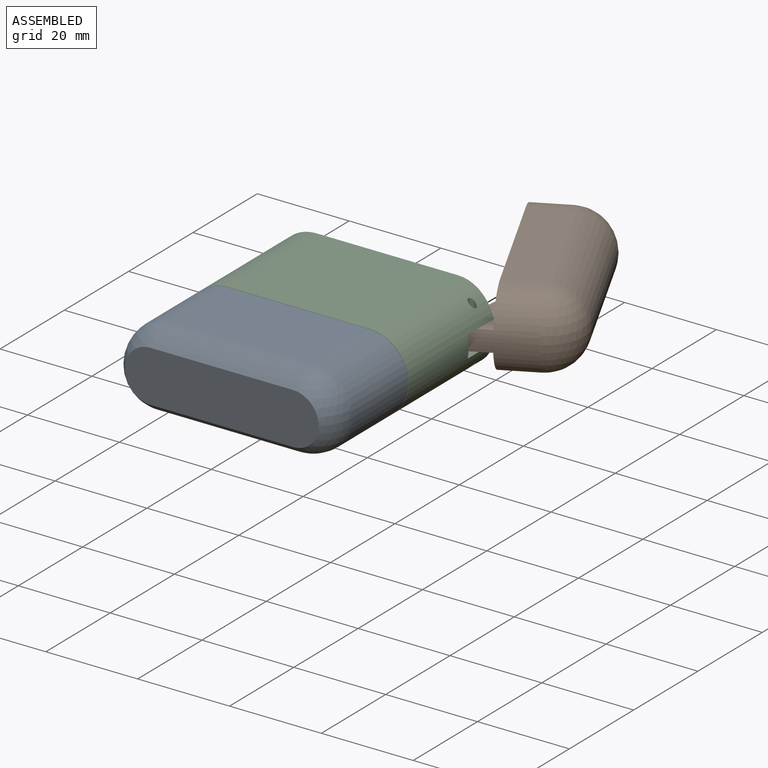
[diagram: assembled view]
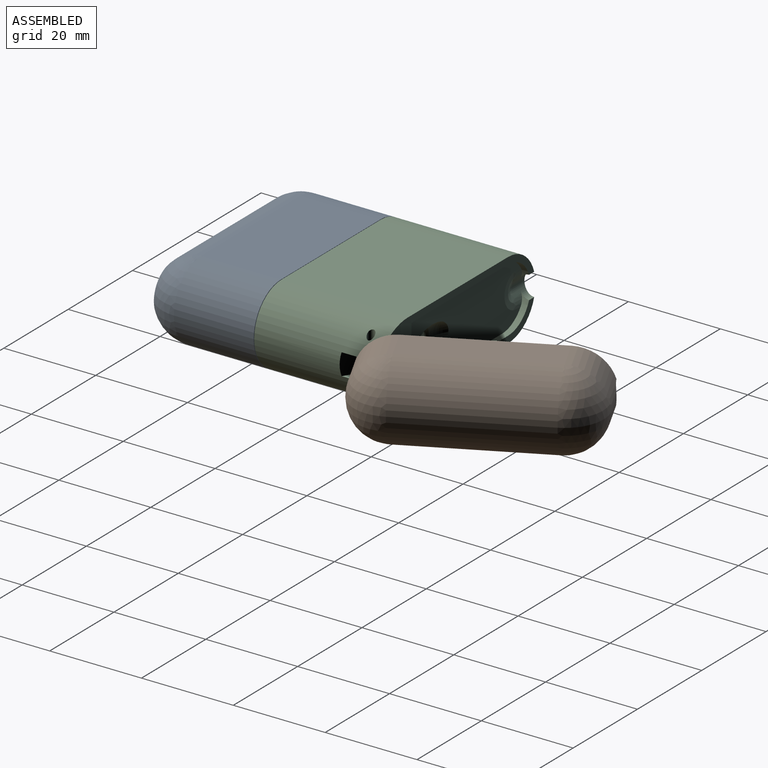
[diagram: assembled view, second angle]
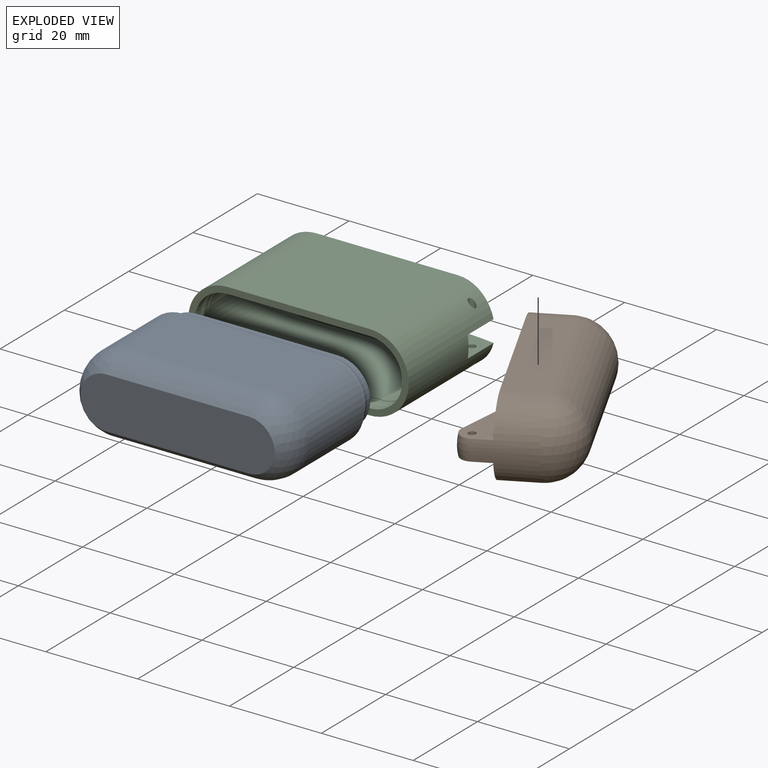
[diagram: exploded view]
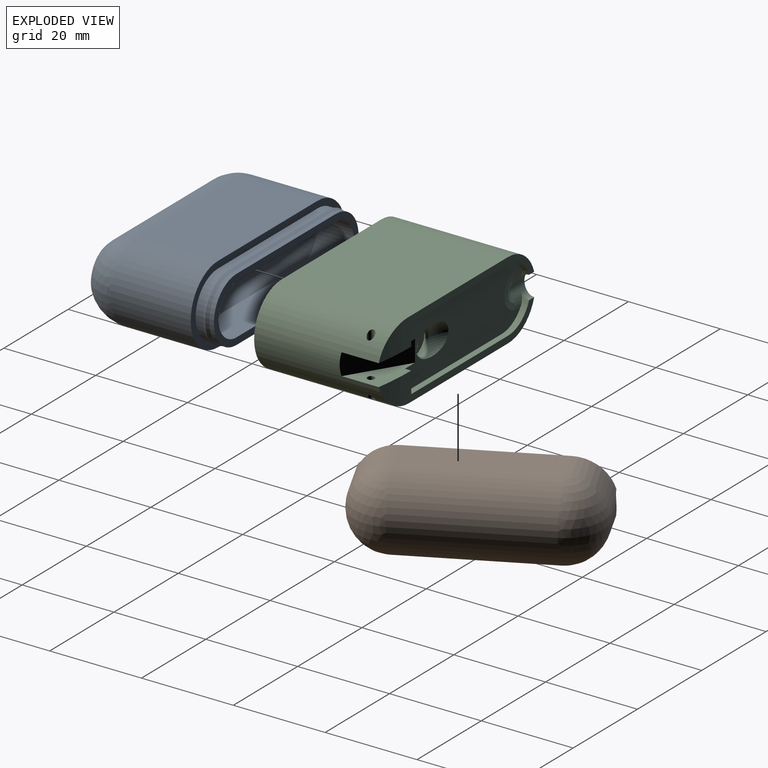
[diagram: exploded view, second angle]
ASSEMBLY  parts=3 mates=3
PART A: 49 faces, bbox 48x29.9x17 mm
  f0: plane 31x1mm, normal (0,0,1), area 31mm2, adj f1,f2,f8,f26
  f1: cylinder r=7mm len=14mm, axis (0,-1,0), area 22mm2, adj f0,f3,f8,f25
  f2: cylinder r=7mm len=14mm, axis (0,-1,0), area 22mm2, adj f0,f3,f8,f23
  f3: plane 31x1mm, normal (0,0,-1), area 31mm2, adj f1,f2,f8,f24
  f4: cylinder r=5.5mm len=11mm, axis (0,-1,0), area 138.2mm2, adj f5,f7,f8,f9
  f5: plane 31x8mm, normal (0,0,1), area 248mm2, adj f4,f6,f8,f9
  f6: cylinder r=5.5mm len=11mm, axis (0,-1,0), area 138.2mm2, adj f5,f7,f8,f9
  f7: plane 31x8mm, normal (0,0,-1), area 248mm2, adj f4,f6,f8,f9
  f8: plane 45x14mm, normal (0,1,0), area 151.9mm2, adj f0,f1,f2,f3,f4,f5,f6,f7
  f9: plane 45x14mm, normal (0,-1,0), area 151.9mm2, adj f4,f5,f6,f7,f17,f18,f19,f20
  f10: plane 41.04x10.04mm, normal (0,1,0), area 390.2mm2, adj f11,f12,f13,f14,f15,f16
  f11: sphere r=7mm, area 53.7mm2, adj f10,f12,f13,f22
  f12: sphere r=7mm, area 53.7mm2, adj f10,f11,f15,f21
  f13: cylinder r=7mm len=31mm, axis (-1,0,0), area 167.4mm2, adj f10,f11,f14,f20
  f14: sphere r=7mm, area 53.7mm2, adj f10,f13,f16,f19
  f15: cylinder r=7mm len=31mm, axis (1,0,0), area 167.4mm2, adj f10,f12,f16,f18
  f16: sphere r=7mm, area 53.7mm2, adj f10,f14,f15,f17
  f17: cylinder r=7mm len=13.38mm, axis (0,-1,0), area 147.2mm2, adj f9,f16,f18,f19
  f18: plane 31x13.38mm, normal (0,0,1), area 414.9mm2, adj f9,f15,f17,f21
  f19: cylinder r=7mm len=13.38mm, axis (0,1,0), area 147.2mm2, adj f9,f14,f17,f20
  f20: plane 31x13.38mm, normal (0,0,-1), area 414.9mm2, adj f9,f13,f19,f22
  f21: cylinder r=7mm len=13.38mm, axis (0,1,0), area 147.2mm2, adj f9,f12,f18,f22
  f22: cylinder r=7mm len=13.38mm, axis (0,-1,0), area 147.2mm2, adj f9,f11,f20,f21
  f23: cone r=7mm half-angle=15deg, axis (0,-1,0), area 17.2mm2, adj f2,f24,f26,f47
  f24: plane 31x0.74mm, normal (0,0.26,-0.97), area 23.8mm2, adj f3,f23,f25,f48
  f25: cone r=7mm half-angle=15deg, axis (0,-1,0), area 17.2mm2, adj f1,f24,f26,f46
  f26: plane 31x0.74mm, normal (0,0.26,0.97), area 23.8mm2, adj f0,f23,f25,f45
  f27: plane 42.23x11.23mm, normal (0,-1,0), area 447.2mm2, adj f28,f29,f30,f31,f32,f33
  f28: cylinder r=8.5mm len=31mm, axis (-1,0,0), area 223.7mm2, adj f27,f29,f33,f34
  f29: sphere r=8.5mm, area 85.2mm2, adj f27,f28,f30,f35
  f30: sphere r=8.5mm, area 85.2mm2, adj f27,f29,f31,f36
  f31: cylinder r=8.5mm len=31mm, axis (1,0,0), area 223.7mm2, adj f27,f30,f32,f37
  f32: sphere r=8.5mm, area 85.2mm2, adj f27,f31,f33,f38
  f33: sphere r=8.5mm, area 85.2mm2, adj f27,f28,f32,f39
  f34: plane 31x17.38mm, normal (0,0,1), area 538.9mm2, adj f28,f35,f39,f40
  f35: cylinder r=8.5mm len=17.38mm, axis (0,1,0), area 232.1mm2, adj f29,f34,f36,f40
  f36: cylinder r=8.5mm len=17.38mm, axis (0,-1,0), area 232.1mm2, adj f30,f35,f37,f40
  f37: plane 31x17.38mm, normal (0,0,-1), area 538.9mm2, adj f31,f36,f38,f40
  f38: cylinder r=8.5mm len=17.38mm, axis (0,1,0), area 232.1mm2, adj f32,f37,f39,f40
  f39: cylinder r=8.5mm len=17.38mm, axis (0,-1,0), area 232.1mm2, adj f33,f34,f38,f40
  f40: plane 48x17mm, normal (0,1,0), area 166mm2, adj f34,f35,f36,f37,f38,f39,f41,f42
  f41: plane 31x1.8mm, normal (0,0,-1), area 55.8mm2, adj f40,f42,f43,f48
  f42: cylinder r=7mm len=14mm, axis (0,-1,0), area 39.6mm2, adj f40,f41,f44,f47
  f43: cylinder r=7mm len=14mm, axis (0,-1,0), area 39.6mm2, adj f40,f41,f44,f46
  f44: plane 31x1.8mm, normal (0,0,1), area 55.8mm2, adj f40,f42,f43,f45
  f45: cylinder r=0.4mm len=31mm, axis (1,0,0), area 16.7mm2, adj f26,f44,f46,f47
  f46: torus R=6.81mm, axis (0,-1,0), area 12.1mm2, adj f25,f43,f45,f48
  f47: torus R=6.81mm, axis (0,-1,0), area 12.1mm2, adj f23,f42,f45,f48
  f48: cylinder r=0.4mm len=31mm, axis (-1,0,0), area 16.7mm2, adj f24,f41,f46,f47
PART B: 43 faces, bbox 48x25.6x17 mm
  f0: plane 47.32x6.25mm, normal (0,-1,0), area 75.8mm2, adj f6,f16,f18,f19,f23,f32,f33,f35
  f1: cylinder r=7mm len=31mm, axis (1,0,0), area 326.8mm2, adj f2,f3,f24,f28,f31,f34
  f2: cylinder r=7mm len=31mm, axis (-1,0,0), area 326.8mm2, adj f1,f4,f23,f29,f32,f34
  f3: sphere r=7mm, area 33.9mm2, adj f1,f5,f24
  f4: sphere r=7mm, area 33.9mm2, adj f2,f6,f23
  f5: cylinder r=7mm len=8.1mm, axis (0,-1,0), area 70.5mm2, adj f3,f7,f24,f31
  f6: cylinder r=7mm len=8.1mm, axis (0,1,0), area 70.5mm2, adj f0,f4,f23,f32
  f7: plane 47.32x6.25mm, normal (0,-1,0), area 75.8mm2, adj f5,f12,f14,f17,f24,f30,f31,f35
  f8: cylinder r=8.5mm len=31mm, axis (1,0,0), area 413.9mm2, adj f9,f10,f13,f14
  f9: cylinder r=8.5mm len=31mm, axis (-1,0,0), area 413.9mm2, adj f8,f11,f15,f16
  f10: sphere r=8.5mm, area 154.7mm2, adj f8,f11,f12
  f11: sphere r=8.5mm, area 154.7mm2, adj f9,f10,f19
  f12: cylinder r=8.5mm len=8.5mm, axis (0,1,0), area 104.9mm2, adj f7,f10,f14,f19,f35
  f13: sphere r=8.5mm, area 72.3mm2, adj f8,f15,f17
  f14: plane 31x8.1mm, normal (0,0,1), area 251mm2, adj f7,f8,f12,f17
  f15: sphere r=8.5mm, area 72.3mm2, adj f9,f13,f18
  f16: plane 31x8.1mm, normal (0,0,-1), area 251mm2, adj f0,f9,f18,f19
  f17: cylinder r=8.5mm len=8.5mm, axis (0,-1,0), area 108.1mm2, adj f7,f13,f14,f18,f21
  f18: cylinder r=8.5mm len=8.5mm, axis (0,1,0), area 108.1mm2, adj f0,f15,f16,f17,f22
  f19: cylinder r=8.5mm len=8.5mm, axis (0,-1,0), area 104.9mm2, adj f0,f11,f12,f16,f35
  f20: plane 10.53x6.48mm, normal (-0.52,-0.85,0), area 54.8mm2, adj f23,f24,f25,f26,f34
  f21: cylinder r=8.5mm len=4.18mm, axis (0,-1,0), area 9.4mm2, adj f17,f22,f24,f26
  f22: cylinder r=8.5mm len=4.18mm, axis (0,1,0), area 9.4mm2, adj f18,f21,f23,f25
  f23: plane 21.39x14.34mm, normal (0,0,-1), area 234.5mm2, adj f0,f2,f4,f6,f20,f22,f25,f27
  f24: plane 21.39x14.34mm, normal (0,0,1), area 234.5mm2, adj f1,f3,f5,f7,f20,f21,f26,f27
  f25: bspline ~7.72x5.39mm, area 13.1mm2, adj f20,f22,f23,f26
  f26: bspline ~5.74x5.39mm, area 13.1mm2, adj f20,f21,f24,f25
  f27: cylinder r=0.8mm len=4.5mm, axis (0,0,1), area 22.6mm2, adj f23,f24
  f28: sphere r=7mm, area 104.9mm2, adj f1,f29,f30
  f29: sphere r=7mm, area 104.9mm2, adj f2,f28,f33
  f30: cylinder r=7mm len=8.1mm, axis (0,1,0), area 85.8mm2, adj f7,f28,f31,f33,f35
  f31: plane 31x8.1mm, normal (0,0,-1), area 251mm2, adj f1,f5,f7,f30
  f32: plane 31x8.1mm, normal (0,0,1), area 251mm2, adj f0,f2,f6,f33
  f33: cylinder r=7mm len=8.1mm, axis (0,-1,0), area 85.8mm2, adj f0,f29,f30,f32,f35
  f34: plane 15.1x4.5mm, normal (-1,0,0), area 67.4mm2, adj f1,f2,f20,f23,f24
  f35: cylinder r=2.5mm len=5mm, axis (1,0,0), area 12.1mm2, adj f0,f7,f12,f19,f30,f33
  f36: cylinder r=2.3mm len=3.5mm, axis (0,0,1), area 7.3mm2, adj f37,f38,f39,f40,f41
  f37: plane 10.24x4.17mm, normal (0,0,1), area 21.9mm2, adj f36,f38,f41,f42
  f38: cylinder r=7mm len=2.21mm, axis (0,1,0), area 1.7mm2, adj f36,f37,f40,f42
  f39: plane 10.24x4.17mm, normal (0,0,-1), area 21.9mm2, adj f36,f40,f41,f42
  f40: cylinder r=7mm len=2.21mm, axis (0,-1,0), area 1.7mm2, adj f36,f38,f39,f42
  f41: plane 6.78x4.17mm, normal (0.52,0.85,0), area 11.9mm2, adj f36,f37,f39,f42
  f42: plane 10.28x1.5mm, normal (0,-1,0), area 15.4mm2, adj f37,f38,f39,f40,f41
PART C: 92 faces, bbox 48.3x28x17.3 mm
  f0: plane 38.24x6mm, normal (0,1,0), area 59.6mm2, adj f17,f19,f24,f25,f32,f87
  f1: bspline ~3.69x3.29mm, area 2.9mm2, adj f2,f3,f63,f68,f71,f74,f77,f79
  f2: bspline ~3.69x3.29mm, area 2.9mm2, adj f1,f4,f63,f67,f73,f76,f77,f86
  f3: bspline ~2.32x0.91mm, area 0.9mm2, adj f1,f4,f64,f74,f78,f79,f80
  f4: bspline ~2.32x0.91mm, area 0.9mm2, adj f2,f3,f64,f76,f78,f85,f86
  f5: cylinder r=10.15mm len=14mm, axis (0,0,-1), area 83.4mm2, adj f6,f7,f12,f16,f64,f65,f66,f72
  f6: plane 14x5.37mm, normal (0,-1,0), area 54.9mm2, adj f5,f9,f12,f16,f61,f62,f64,f65
  f7: plane 25.49x14mm, normal (0,-1,0), area 335.9mm2, adj f5,f12,f14,f16,f18
  f8: plane 35.98x14mm, normal (0,1,0), area 395.6mm2, adj f10,f11,f13,f15,f17,f19,f26,f28
  f9: plane 7.7x1.66mm, normal (-1,0,0), area 12.8mm2, adj f6,f33,f36,f37
  f10: plane 4.65x1.35mm, normal (-1,0,0), area 6.3mm2, adj f8,f13,f26,f31
  f11: plane 4.65x1.35mm, normal (-1,0,0), area 6.3mm2, adj f8,f17,f29,f32
  f12: plane 31x22.14mm, normal (0,0,-1), area 628.5mm2, adj f5,f6,f7,f14,f38,f39,f43,f61
  f13: plane 30.12x1.35mm, normal (0,0,-1), area 40.7mm2, adj f8,f10,f15,f42
  f14: cylinder r=7mm len=20.29mm, axis (0,1,0), area 223.1mm2, adj f7,f12,f18,f43
  f15: cylinder r=7mm len=6.88mm, axis (0,1,0), area 12.8mm2, adj f8,f13,f42,f87,f89
  f16: plane 31x22.14mm, normal (0,0,1), area 628.5mm2, adj f5,f6,f7,f18,f40,f41,f43,f62
  f17: plane 30.12x1.35mm, normal (0,0,1), area 40.7mm2, adj f0,f8,f11,f19
  f18: cylinder r=7mm len=20.29mm, axis (0,-1,0), area 223.1mm2, adj f7,f14,f16,f43
  f19: cylinder r=7mm len=6.88mm, axis (0,-1,0), area 12.8mm2, adj f0,f8,f17,f87,f91
  f20: cylinder r=8.5mm len=27.63mm, axis (0,-1,0), area 340.9mm2, adj f21,f22,f26,f27,f28,f31,f52
  f21: cylinder r=8.5mm len=27.63mm, axis (0,1,0), area 340.9mm2, adj f20,f24,f28,f29,f30,f32,f52
  f22: plane 31x27.64mm, normal (0,0,1), area 856.7mm2, adj f20,f23,f31,f42,f52
  f23: cylinder r=8.5mm len=27.64mm, axis (0,1,0), area 366mm2, adj f22,f25,f42,f52,f87
  f24: plane 31x27.64mm, normal (0,0,-1), area 856.7mm2, adj f0,f21,f25,f32,f52
  f25: cylinder r=8.5mm len=27.64mm, axis (0,-1,0), area 366mm2, adj f0,f23,f24,f52,f87
  f26: plane 12.14x8.82mm, normal (0,0,-1), area 53.3mm2, adj f8,f10,f20,f27,f28,f31
  f27: cylinder r=0.8mm len=4.52mm, axis (0,0,1), area 19.2mm2, adj f20,f26
  f28: plane 12.58x7.78mm, normal (0.52,0.85,0), area 68.2mm2, adj f8,f20,f21,f26,f29
  f29: plane 12.14x8.82mm, normal (0,0,1), area 53.3mm2, adj f8,f11,f21,f28,f30,f32
  f30: cylinder r=0.8mm len=4.52mm, axis (0,0,1), area 19.2mm2, adj f21,f29
  f31: cylinder r=55.73mm len=9.05mm, axis (0,0,-1), area 42.6mm2, adj f10,f20,f22,f26,f42
  f32: cylinder r=55.73mm len=9.05mm, axis (0,0,-1), area 42.6mm2, adj f0,f11,f21,f24,f29
  f33: plane 7.65x6.73mm, normal (0,0,1), area 28.2mm2, adj f9,f34,f37,f38,f39,f61
  f34: cylinder r=2.3mm len=4.53mm, axis (0,0,1), area 11.1mm2, adj f33,f38,f39
  f35: cylinder r=2.3mm len=4.53mm, axis (0,0,1), area 11.1mm2, adj f36,f40,f41
  f36: plane 7.65x6.73mm, normal (0,0,-1), area 28.2mm2, adj f9,f35,f37,f40,f41,f62
  f37: plane 8.23x8.05mm, normal (-0.52,-0.85,0), area 67.9mm2, adj f9,f33,f36,f38,f41
  f38: cylinder r=7mm len=22.13mm, axis (0,-1,0), area 197.2mm2, adj f12,f33,f34,f37,f39,f41,f43
  f39: cylinder r=54.23mm len=6.12mm, axis (0,0,-1), area 15.5mm2, adj f12,f33,f34,f38,f61
  f40: cylinder r=54.23mm len=6.12mm, axis (0,0,-1), area 15.5mm2, adj f16,f35,f36,f41,f62
  f41: cylinder r=7mm len=22.13mm, axis (0,1,0), area 197.2mm2, adj f16,f35,f36,f37,f38,f40,f43
  f42: plane 38.24x6mm, normal (0,1,0), area 59.6mm2, adj f13,f15,f22,f23,f31,f87
  f43: plane 45.2x14.2mm, normal (0,-1,0), area 10.6mm2, adj f12,f14,f16,f18,f38,f41,f44,f45
  f44: plane 31x1.09mm, normal (0,0,-1), area 33.7mm2, adj f43,f45,f46,f51
  f45: cylinder r=7.1mm len=14.2mm, axis (0,-1,0), area 24.2mm2, adj f43,f44,f47,f50
  f46: cylinder r=7.1mm len=14.2mm, axis (0,-1,0), area 24.2mm2, adj f43,f44,f47,f48
  f47: plane 31x1.09mm, normal (0,0,1), area 33.7mm2, adj f43,f45,f46,f49
  f48: cone r=7.1mm half-angle=15deg, axis (0,-1,0), area 17.1mm2, adj f46,f49,f51,f59
  f49: plane 31x0.73mm, normal (0,-0.26,0.97), area 23.4mm2, adj f47,f48,f50,f60
  f50: cone r=7.1mm half-angle=15deg, axis (0,-1,0), area 17.1mm2, adj f45,f49,f51,f58
  f51: plane 31x0.73mm, normal (0,-0.26,-0.97), area 23.4mm2, adj f44,f48,f50,f57
  f52: plane 48x17mm, normal (0,-1,0), area 155.4mm2, adj f20,f21,f22,f23,f24,f25,f53,f54
  f53: plane 31x1.64mm, normal (0,0,1), area 51mm2, adj f52,f54,f55,f60
  f54: cylinder r=7.1mm len=14.2mm, axis (0,-1,0), area 36.7mm2, adj f52,f53,f56,f59
  f55: cylinder r=7.1mm len=14.2mm, axis (0,-1,0), area 36.7mm2, adj f52,f53,f56,f58
  f56: plane 31x1.64mm, normal (0,0,-1), area 51mm2, adj f52,f54,f55,f57
  f57: cylinder r=0.5mm len=31mm, axis (1,0,0), area 18.9mm2, adj f51,f56,f58,f59
  f58: torus R=6.81mm, axis (0,-1,0), area 13.9mm2, adj f50,f55,f57,f60
  f59: torus R=6.81mm, axis (0,-1,0), area 13.9mm2, adj f48,f54,f57,f60
  f60: cylinder r=0.5mm len=31mm, axis (-1,0,0), area 18.9mm2, adj f49,f53,f58,f59
  f61: plane 3.15x1.85mm, normal (1,0,0), area 5.8mm2, adj f6,f12,f33,f39
  f62: plane 3.15x1.85mm, normal (1,0,0), area 5.8mm2, adj f6,f16,f36,f40
  f63: torus R=5.15mm, axis (0,0,-1), area 39.7mm2, adj f1,f2,f8,f71,f73
  f64: plane 10.1x0.9mm, normal (-0.97,-0.25,0), area 8.3mm2, adj f3,f4,f5,f6,f65,f66
  f65: plane 2.04x0.8mm, normal (0,0,1), area 0.7mm2, adj f5,f6,f64
  f66: plane 2.04x0.8mm, normal (0,0,-1), area 0.7mm2, adj f5,f6,f64
  f67: cylinder r=2.5mm len=2.18mm, axis (-0.32,0.95,0), area 1mm2, adj f2,f69,f76
  f68: cylinder r=2.5mm len=2.18mm, axis (0.32,-0.95,0), area 1mm2, adj f1,f70,f74
  f69: cylinder r=2.5mm len=2.18mm, axis (0.32,-0.95,0), area 1mm2, adj f67,f73,f75
  f70: cylinder r=2.5mm len=2.18mm, axis (-0.32,0.95,0), area 1mm2, adj f68,f71,f72
  f71: bspline ~3.37x3.32mm, area 2.7mm2, adj f1,f63,f70,f72,f73
  f72: bspline ~4.27x3.87mm, area 5.5mm2, adj f5,f70,f71,f74,f75
  f73: bspline ~3.37x3.32mm, area 2.7mm2, adj f2,f63,f69,f71,f75
  f74: bspline ~3.49x1.98mm, area 3.1mm2, adj f1,f3,f5,f68,f72
  f75: bspline ~4.27x3.37mm, area 5.5mm2, adj f5,f69,f72,f73,f76
  f76: bspline ~3.63x2.2mm, area 3.1mm2, adj f2,f4,f5,f67,f75
  f77: plane 2.01x1.5mm, normal (-0.34,0.94,0), area 2.6mm2, adj f1,f2,f79,f81,f83,f86
  f78: plane 1.91x1.41mm, normal (0.25,-0.97,0), area 2.5mm2, adj f3,f4,f80,f82,f84,f85
  f79: cylinder r=0.3mm len=1.2mm, axis (-0.94,-0.34,0), area 0.4mm2, adj f1,f3,f77,f80,f81,f82
  f80: cylinder r=0.3mm len=1.23mm, axis (0.97,0.25,0), area 0.4mm2, adj f3,f78,f79,f82
  f81: bspline ~1.02x0.97mm, area 0.5mm2, adj f77,f79,f82,f83
  f82: bspline ~1.22x1mm, area 0.5mm2, adj f78,f79,f80,f81,f84
  f83: bspline ~1.18x1.17mm, area 0.6mm2, adj f77,f81,f84,f86
  f84: bspline ~1.22x1.05mm, area 0.5mm2, adj f78,f82,f83,f85,f86
  f85: cylinder r=0.3mm len=1.23mm, axis (-0.97,-0.25,0), area 0.4mm2, adj f4,f78,f84,f86
  f86: cylinder r=0.3mm len=1.2mm, axis (0.94,0.34,0), area 0.4mm2, adj f2,f4,f77,f83,f84,f85
  f87: cylinder r=2.5mm len=5mm, axis (1,0,0), area 18.2mm2, adj f0,f15,f19,f23,f25,f42,f88,f89
  f88: torus R=0.5mm, axis (1,0,0), area 2.3mm2, adj f87,f90
  f89: cylinder r=5mm len=2.55mm, axis (1,0,0), area 5mm2, adj f8,f15,f87,f90
  f90: bspline ~7.65x4.51mm, area 20.8mm2, adj f8,f88,f89,f91
  f91: cylinder r=5mm len=2.55mm, axis (1,0,0), area 5mm2, adj f8,f19,f87,f90
PLACE A t=(3.41,-7.56,0)mm
PLACE B rot(axis=(0,0,-1),63.6deg) t=(10.91,14.2,0)mm
PLACE C t=(3.41,-7.56,0)mm
MATE planar B.f14 <-> C.f22  axis (0,0,1) through (22.6,20.01,8.5)mm
MATE fastened A.f1 <-> C.f45  axis (0,1,0) through (18.91,-26.39,0)mm
MATE revolute B.f27 <-> C.f27  axis (0,0,1) through (24.71,-2.73,2.25)mm
